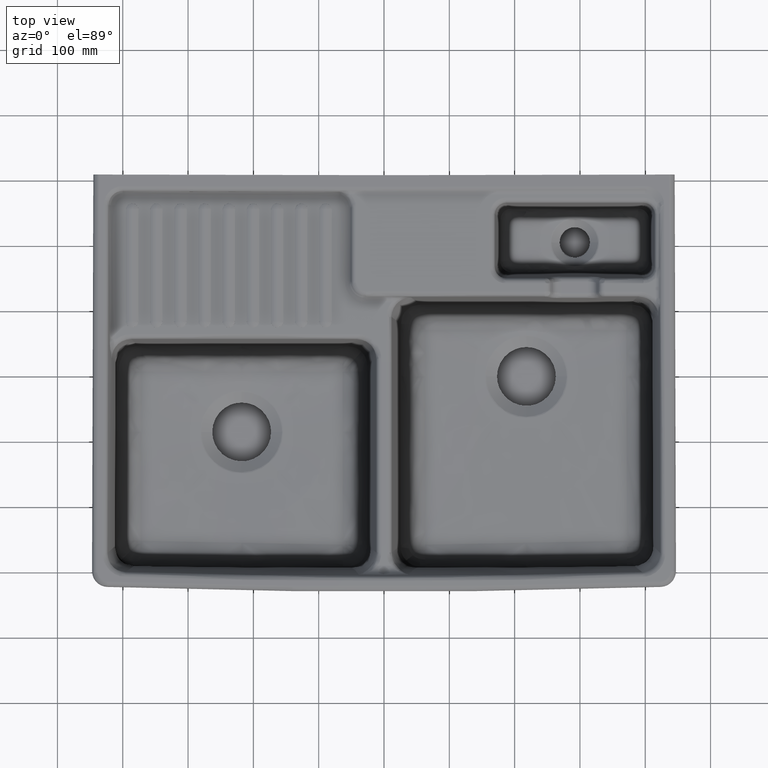
[diagram: clean part render]
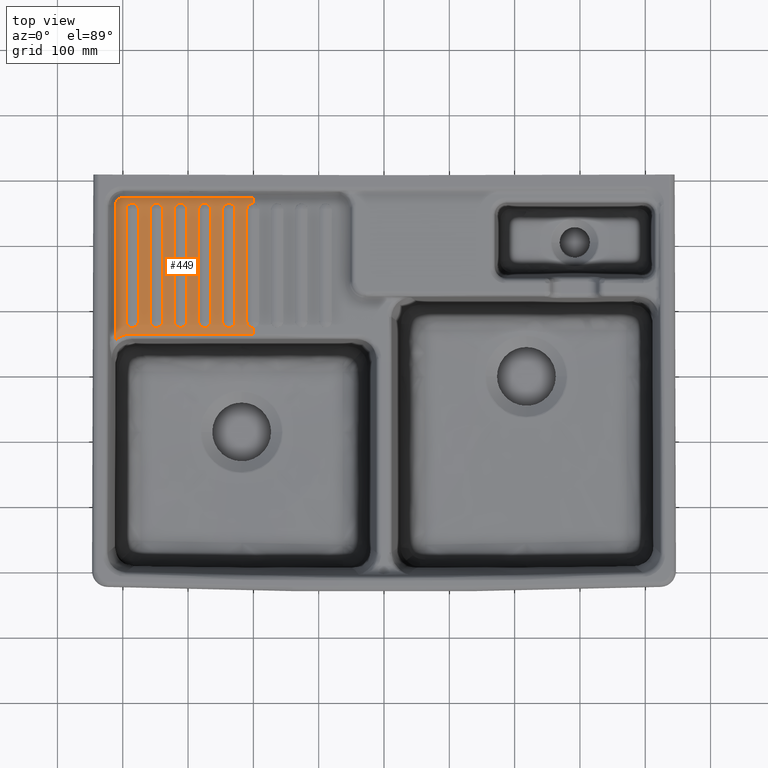
[diagram: same view with one face highlighted and labeled with its STEP entity id]
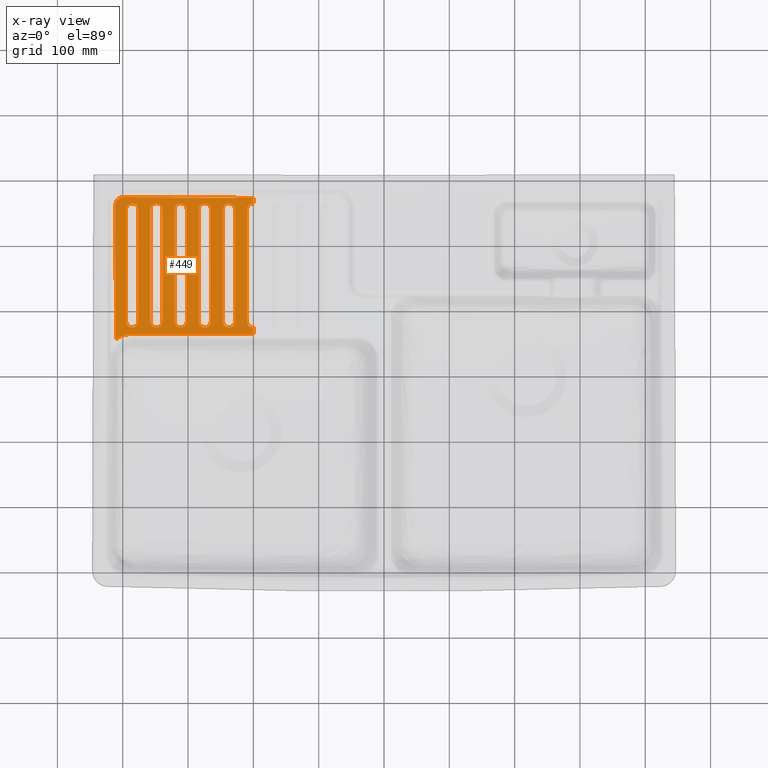
[diagram: x-ray of the same camera — body ghosted, the highlighted face saturated]
A machine part, top view. The second image highlights one B-rep face of the part: STEP entity #449.
The next image is the same camera in x-ray: the body ghosted, the highlighted face saturated — about 0% of this face is hidden behind the body in this view.
In plain terms, the highlighted planar face has unit normal (0.0029, -0.0325, 0.9995).
Its self-contained STEP definition (entity closure, byte-faithful):
#106=FACE_BOUND('',#1759,.T.);
#107=FACE_BOUND('',#1760,.T.);
#108=FACE_BOUND('',#1761,.T.);
#109=FACE_BOUND('',#1762,.T.);
#110=FACE_BOUND('',#1763,.T.);
#111=FACE_BOUND('',#1764,.T.);
#145=PLANE('',#7480);
#449=ADVANCED_FACE('',(#106,#107,#108,#109,#110,#111),#145,.T.);
#1759=EDGE_LOOP('',(#3286,#3287,#3288,#3289,#3290,#3291,#3292,#3293,#3294,
#3295,#3296,#3297));
#1760=EDGE_LOOP('',(#3298,#3299,#3300,#3301,#3302,#3303));
#1761=EDGE_LOOP('',(#3304,#3305,#3306,#3307,#3308,#3309));
#1762=EDGE_LOOP('',(#3310,#3311,#3312,#3313,#3314,#3315));
#1763=EDGE_LOOP('',(#3316,#3317,#3318,#3319,#3320,#3321));
#1764=EDGE_LOOP('',(#3322,#3323,#3324,#3325,#3326,#3327));
#3286=ORIENTED_EDGE('',*,*,#5849,.F.);
#3287=ORIENTED_EDGE('',*,*,#5844,.T.);
#3288=ORIENTED_EDGE('',*,*,#5618,.T.);
#3289=ORIENTED_EDGE('',*,*,#5850,.F.);
#3290=ORIENTED_EDGE('',*,*,#5614,.T.);
#3291=ORIENTED_EDGE('',*,*,#5543,.T.);
#3292=ORIENTED_EDGE('',*,*,#5545,.T.);
#3293=ORIENTED_EDGE('',*,*,#5548,.T.);
#3294=ORIENTED_EDGE('',*,*,#5610,.T.);
#3295=ORIENTED_EDGE('',*,*,#5851,.F.);
#3296=ORIENTED_EDGE('',*,*,#5852,.F.);
#3297=ORIENTED_EDGE('',*,*,#5853,.F.);
#3298=ORIENTED_EDGE('',*,*,#5550,.T.);
#3299=ORIENTED_EDGE('',*,*,#5553,.T.);
#3300=ORIENTED_EDGE('',*,*,#5554,.T.);
#3301=ORIENTED_EDGE('',*,*,#5557,.T.);
#3302=ORIENTED_EDGE('',*,*,#5559,.T.);
#3303=ORIENTED_EDGE('',*,*,#5560,.T.);
#3304=ORIENTED_EDGE('',*,*,#5562,.T.);
#3305=ORIENTED_EDGE('',*,*,#5565,.T.);
#3306=ORIENTED_EDGE('',*,*,#5566,.T.);
#3307=ORIENTED_EDGE('',*,*,#5569,.T.);
#3308=ORIENTED_EDGE('',*,*,#5571,.T.);
#3309=ORIENTED_EDGE('',*,*,#5572,.T.);
#3310=ORIENTED_EDGE('',*,*,#5574,.T.);
#3311=ORIENTED_EDGE('',*,*,#5577,.T.);
#3312=ORIENTED_EDGE('',*,*,#5578,.T.);
#3313=ORIENTED_EDGE('',*,*,#5581,.T.);
#3314=ORIENTED_EDGE('',*,*,#5583,.T.);
#3315=ORIENTED_EDGE('',*,*,#5584,.T.);
#3316=ORIENTED_EDGE('',*,*,#5586,.T.);
#3317=ORIENTED_EDGE('',*,*,#5589,.T.);
#3318=ORIENTED_EDGE('',*,*,#5590,.T.);
#3319=ORIENTED_EDGE('',*,*,#5593,.T.);
#3320=ORIENTED_EDGE('',*,*,#5595,.T.);
#3321=ORIENTED_EDGE('',*,*,#5596,.T.);
#3322=ORIENTED_EDGE('',*,*,#5598,.T.);
#3323=ORIENTED_EDGE('',*,*,#5601,.T.);
#3324=ORIENTED_EDGE('',*,*,#5602,.T.);
#3325=ORIENTED_EDGE('',*,*,#5605,.T.);
#3326=ORIENTED_EDGE('',*,*,#5607,.T.);
#3327=ORIENTED_EDGE('',*,*,#5608,.T.);
#4633=VERTEX_POINT('',#19052);
#4634=VERTEX_POINT('',#19072);
#4635=VERTEX_POINT('',#19135);
#4636=VERTEX_POINT('',#19141);
#4637=VERTEX_POINT('',#19203);
#4638=VERTEX_POINT('',#19225);
#4639=VERTEX_POINT('',#19290);
#4640=VERTEX_POINT('',#19334);
#4641=VERTEX_POINT('',#19340);
#4642=VERTEX_POINT('',#19382);
#4643=VERTEX_POINT('',#19447);
#4644=VERTEX_POINT('',#19469);
#4645=VERTEX_POINT('',#19534);
#4646=VERTEX_POINT('',#19578);
#4647=VERTEX_POINT('',#19584);
#4648=VERTEX_POINT('',#19630);
#4649=VERTEX_POINT('',#19713);
#4650=VERTEX_POINT('',#19735);
#4651=VERTEX_POINT('',#19782);
#4652=VERTEX_POINT('',#19849);
#4653=VERTEX_POINT('',#19855);
#4654=VERTEX_POINT('',#19901);
#4655=VERTEX_POINT('',#19984);
#4656=VERTEX_POINT('',#20006);
#4657=VERTEX_POINT('',#20053);
#4658=VERTEX_POINT('',#20120);
#4659=VERTEX_POINT('',#20126);
#4660=VERTEX_POINT('',#20172);
#4661=VERTEX_POINT('',#20255);
#4662=VERTEX_POINT('',#20277);
#4663=VERTEX_POINT('',#20306);
#4664=VERTEX_POINT('',#20386);
#4665=VERTEX_POINT('',#20392);
#4666=VERTEX_POINT('',#20456);
#4667=VERTEX_POINT('',#20529);
#4670=VERTEX_POINT('',#20589);
#4672=VERTEX_POINT('',#20631);
#4673=VERTEX_POINT('',#20636);
#4806=VERTEX_POINT('',#26821);
#4810=VERTEX_POINT('',#26924);
#4811=VERTEX_POINT('',#26933);
#4812=VERTEX_POINT('',#26938);
#5543=EDGE_CURVE('',#4634,#4633,#6738,.T.);
#5545=EDGE_CURVE('',#4633,#4635,#6740,.T.);
#5548=EDGE_CURVE('',#4635,#4636,#6743,.T.);
#5550=EDGE_CURVE('',#4638,#4637,#6745,.T.);
#5553=EDGE_CURVE('',#4637,#4639,#6748,.T.);
#5554=EDGE_CURVE('',#4639,#4640,#6749,.T.);
#5557=EDGE_CURVE('',#4640,#4641,#6752,.T.);
#5559=EDGE_CURVE('',#4641,#4642,#6754,.T.);
#5560=EDGE_CURVE('',#4642,#4638,#6755,.T.);
#5562=EDGE_CURVE('',#4644,#4643,#6757,.T.);
#5565=EDGE_CURVE('',#4643,#4645,#6760,.T.);
#5566=EDGE_CURVE('',#4645,#4646,#6761,.T.);
#5569=EDGE_CURVE('',#4646,#4647,#6764,.T.);
#5571=EDGE_CURVE('',#4647,#4648,#6766,.T.);
#5572=EDGE_CURVE('',#4648,#4644,#6767,.T.);
#5574=EDGE_CURVE('',#4650,#4649,#6769,.T.);
#5577=EDGE_CURVE('',#4649,#4651,#6772,.T.);
#5578=EDGE_CURVE('',#4651,#4652,#6773,.T.);
#5581=EDGE_CURVE('',#4652,#4653,#6776,.T.);
#5583=EDGE_CURVE('',#4653,#4654,#6778,.T.);
#5584=EDGE_CURVE('',#4654,#4650,#6779,.T.);
#5586=EDGE_CURVE('',#4656,#4655,#6781,.T.);
#5589=EDGE_CURVE('',#4655,#4657,#6784,.T.);
#5590=EDGE_CURVE('',#4657,#4658,#6785,.T.);
#5593=EDGE_CURVE('',#4658,#4659,#6788,.T.);
#5595=EDGE_CURVE('',#4659,#4660,#6790,.T.);
#5596=EDGE_CURVE('',#4660,#4656,#6791,.T.);
#5598=EDGE_CURVE('',#4662,#4661,#6793,.T.);
#5601=EDGE_CURVE('',#4661,#4663,#6796,.T.);
#5602=EDGE_CURVE('',#4663,#4664,#6797,.T.);
#5605=EDGE_CURVE('',#4664,#4665,#6800,.T.);
#5607=EDGE_CURVE('',#4665,#4666,#6802,.T.);
#5608=EDGE_CURVE('',#4666,#4662,#6803,.T.);
#5610=EDGE_CURVE('',#4636,#4667,#6805,.T.);
#5614=EDGE_CURVE('',#4670,#4634,#6809,.T.);
#5618=EDGE_CURVE('',#4673,#4672,#6813,.T.);
#5844=EDGE_CURVE('',#4806,#4673,#7039,.T.);
#5849=EDGE_CURVE('',#4806,#4810,#7044,.T.);
#5850=EDGE_CURVE('',#4670,#4672,#7045,.T.);
#5851=EDGE_CURVE('',#4811,#4667,#7046,.T.);
#5852=EDGE_CURVE('',#4812,#4811,#7047,.T.);
#5853=EDGE_CURVE('',#4810,#4812,#7048,.T.);
#6738=B_SPLINE_CURVE_WITH_KNOTS('',3,(#19053,#19054,#19055,#19056,#19057,
#19058,#19059,#19060,#19061,#19062,#19063,#19064,#19065,#19066,#19067,#19068,
#19069,#19070,#19071),.UNSPECIFIED.,.F.,.F.,(4,2,1,1,1,2,2,2,2,2,4),(0.,
0.00781250000000168,0.0156250000000034,0.0312500000000067,0.0625000000000074,
0.125000000000009,0.250000000000006,0.500000000000005,0.625000000000005,
0.750000000000005,1.),.UNSPECIFIED.);
#6740=B_SPLINE_CURVE_WITH_KNOTS('',3,(#19131,#19132,#19133,#19134),
 .UNSPECIFIED.,.F.,.F.,(4,4),(0.,1.),.UNSPECIFIED.);
#6743=B_SPLINE_CURVE_WITH_KNOTS('',3,(#19142,#19143,#19144,#19145,#19146,
#19147,#19148,#19149,#19150,#19151,#19152,#19153,#19154,#19155,#19156,#19157,
#19158,#19159,#19160,#19161,#19162),.UNSPECIFIED.,.F.,.F.,(4,2,2,2,2,2,
2,1,1,1,2,4),(0.,0.125000000000003,0.250000000000006,0.500000000000003,
0.625000000000002,0.750000000000001,0.875,0.937499999999997,0.968749999999998,
0.984374999999999,0.9921875,1.),.UNSPECIFIED.);
#6745=B_SPLINE_CURVE_WITH_KNOTS('',3,(#19204,#19205,#19206,#19207,#19208,
#19209,#19210,#19211,#19212,#19213,#19214,#19215,#19216,#19217,#19218,#19219,
#19220,#19221,#19222,#19223,#19224),.UNSPECIFIED.,.F.,.F.,(4,2,2,2,2,2,
2,1,1,1,2,4),(0.,0.124999999999998,0.249999999999996,0.499999999999992,
0.624999999999994,0.749999999999996,0.874999999999998,0.937499999999999,
0.96875,0.984375000000006,0.992187500000003,1.),.UNSPECIFIED.);
#6748=B_SPLINE_CURVE_WITH_KNOTS('',3,(#19291,#19292,#19293,#19294,#19295,
#19296,#19297,#19298,#19299,#19300,#19301,#19302,#19303,#19304,#19305,#19306,
#19307,#19308,#19309),.UNSPECIFIED.,.F.,.F.,(4,2,1,1,1,2,2,2,2,2,4),(0.,
0.00781249999999886,0.0156249999999977,0.0312499999999954,0.0624999999999909,
0.124999999999994,0.25,0.500000000000001,0.750000000000002,0.875000000000001,
1.),.UNSPECIFIED.);
#6749=B_SPLINE_CURVE_WITH_KNOTS('',3,(#19330,#19331,#19332,#19333),
 .UNSPECIFIED.,.F.,.F.,(4,4),(0.,1.),.UNSPECIFIED.);
#6752=B_SPLINE_CURVE_WITH_KNOTS('',3,(#19341,#19342,#19343,#19344,#19345,
#19346,#19347,#19348,#19349,#19350,#19351,#19352,#19353,#19354,#19355,#19356,
#19357),.UNSPECIFIED.,.F.,.F.,(4,2,1,1,1,2,2,2,2,4),(0.,0.0078125000000054,
0.0156250000000108,0.0312500000000114,0.0625000000000126,0.125000000000014,
0.250000000000014,0.375000000000015,0.500000000000015,1.),.UNSPECIFIED.);
#6754=B_SPLINE_CURVE_WITH_KNOTS('',3,(#19383,#19384,#19385,#19386,#19387,
#19388,#19389,#19390,#19391,#19392,#19393,#19394,#19395,#19396,#19397,#19398,
#19399,#19400,#19401),.UNSPECIFIED.,.F.,.F.,(4,2,1,1,1,2,2,2,2,2,4),(0.,
0.00781249999999791,0.0156249999999958,0.0312500000000034,0.0625000000000067,
0.125000000000012,0.250000000000014,0.500000000000011,0.750000000000008,
0.875000000000004,1.),.UNSPECIFIED.);
#6755=B_SPLINE_CURVE_WITH_KNOTS('',3,(#19440,#19441,#19442,#19443),
 .UNSPECIFIED.,.F.,.F.,(4,4),(0.,1.),.UNSPECIFIED.);
#6757=B_SPLINE_CURVE_WITH_KNOTS('',3,(#19448,#19449,#19450,#19451,#19452,
#19453,#19454,#19455,#19456,#19457,#19458,#19459,#19460,#19461,#19462,#19463,
#19464,#19465,#19466,#19467,#19468),.UNSPECIFIED.,.F.,.F.,(4,2,2,2,2,2,
2,1,1,1,2,4),(0.,0.125000000000001,0.250000000000002,0.500000000000001,
0.625000000000001,0.750000000000001,0.875000000000001,0.9375,0.96875,0.984375,
0.9921875,1.),.UNSPECIFIED.);
#6760=B_SPLINE_CURVE_WITH_KNOTS('',3,(#19535,#19536,#19537,#19538,#19539,
#19540,#19541,#19542,#19543,#19544,#19545,#19546,#19547,#19548,#19549,#19550,
#19551,#19552,#19553),.UNSPECIFIED.,.F.,.F.,(4,2,1,1,1,2,2,2,2,2,4),(0.,
0.00781250000000505,0.0156250000000101,0.0312500000000085,0.0625000000000053,
0.124999999999999,0.249999999999998,0.499999999999997,0.749999999999995,
0.874999999999997,1.),.UNSPECIFIED.);
#6761=B_SPLINE_CURVE_WITH_KNOTS('',3,(#19574,#19575,#19576,#19577),
 .UNSPECIFIED.,.F.,.F.,(4,4),(0.,1.),.UNSPECIFIED.);
#6764=B_SPLINE_CURVE_WITH_KNOTS('',3,(#19585,#19586,#19587,#19588,#19589,
#19590,#19591,#19592,#19593,#19594,#19595,#19596,#19597,#19598,#19599,#19600,
#19601,#19602,#19603,#19604,#19605),.UNSPECIFIED.,.F.,.F.,(4,2,2,2,2,2,
2,1,1,1,2,4),(0.,0.125000000000002,0.250000000000004,0.500000000000008,
0.625000000000006,0.750000000000004,0.875000000000002,0.937500000000001,
0.968750000000007,0.984375000000009,0.992187500000005,1.),.UNSPECIFIED.);
#6766=B_SPLINE_CURVE_WITH_KNOTS('',3,(#19631,#19632,#19633,#19634,#19635,
#19636,#19637,#19638,#19639,#19640,#19641,#19642,#19643,#19644,#19645,#19646,
#19647,#19648,#19649),.UNSPECIFIED.,.F.,.F.,(4,2,1,1,1,2,2,2,2,2,4),(0.,
0.0078124999999907,0.0156249999999814,0.0312499999999748,0.0624999999999738,
0.124999999999972,0.249999999999968,0.499999999999976,0.749999999999983,
0.874999999999991,1.),.UNSPECIFIED.);
#6767=B_SPLINE_CURVE_WITH_KNOTS('',3,(#19706,#19707,#19708,#19709),
 .UNSPECIFIED.,.F.,.F.,(4,4),(0.,1.),.UNSPECIFIED.);
#6769=B_SPLINE_CURVE_WITH_KNOTS('',3,(#19714,#19715,#19716,#19717,#19718,
#19719,#19720,#19721,#19722,#19723,#19724,#19725,#19726,#19727,#19728,#19729,
#19730,#19731,#19732,#19733,#19734),.UNSPECIFIED.,.F.,.F.,(4,2,2,2,2,2,
2,1,1,1,2,4),(0.,0.124999999999998,0.249999999999996,0.5,0.625000000000006,
0.750000000000011,0.875000000000017,0.93750000000002,0.968750000000022,
0.984375000000017,0.992187500000008,1.),.UNSPECIFIED.);
#6772=B_SPLINE_CURVE_WITH_KNOTS('',3,(#19783,#19784,#19785,#19786,#19787,
#19788,#19789,#19790,#19791,#19792,#19793,#19794,#19795,#19796,#19797,#19798,
#19799,#19800,#19801,#19802,#19803,#19804,#19805,#19806),.UNSPECIFIED.,
 .F.,.F.,(4,2,1,1,1,2,2,2,2,2,1,1,1,2,4),(0.,0.00781250000000093,0.0156250000000019,
0.0312500000000036,0.0625000000000071,0.125000000000014,0.250000000000017,
0.500000000000012,0.750000000000008,0.875000000000002,0.9375,0.968749999999998,
0.984374999999998,0.992187499999999,1.),.UNSPECIFIED.);
#6773=B_SPLINE_CURVE_WITH_KNOTS('',3,(#19845,#19846,#19847,#19848),
 .UNSPECIFIED.,.F.,.F.,(4,4),(0.,1.),.UNSPECIFIED.);
#6776=B_SPLINE_CURVE_WITH_KNOTS('',3,(#19856,#19857,#19858,#19859,#19860,
#19861,#19862,#19863,#19864,#19865,#19866,#19867,#19868,#19869,#19870,#19871,
#19872,#19873,#19874,#19875,#19876),.UNSPECIFIED.,.F.,.F.,(4,2,2,2,2,2,
2,1,1,1,2,4),(0.,0.125,0.25,0.499999999999995,0.624999999999997,0.749999999999998,
0.875,0.937499999999994,0.968749999999991,0.984374999999995,0.992187499999998,
1.),.UNSPECIFIED.);
#6778=B_SPLINE_CURVE_WITH_KNOTS('',3,(#19902,#19903,#19904,#19905,#19906,
#19907,#19908,#19909,#19910,#19911,#19912,#19913,#19914,#19915,#19916,#19917,
#19918,#19919,#19920),.UNSPECIFIED.,.F.,.F.,(4,2,1,1,1,2,2,2,2,2,4),(0.,
0.00781250000000232,0.0156250000000046,0.0312500000000093,0.0625000000000069,
0.125000000000013,0.250000000000015,0.500000000000008,0.750000000000002,
0.875000000000001,1.),.UNSPECIFIED.);
#6779=B_SPLINE_CURVE_WITH_KNOTS('',3,(#19977,#19978,#19979,#19980),
 .UNSPECIFIED.,.F.,.F.,(4,4),(0.,1.),.UNSPECIFIED.);
#6781=B_SPLINE_CURVE_WITH_KNOTS('',3,(#19985,#19986,#19987,#19988,#19989,
#19990,#19991,#19992,#19993,#19994,#19995,#19996,#19997,#19998,#19999,#20000,
#20001,#20002,#20003,#20004,#20005),.UNSPECIFIED.,.F.,.F.,(4,2,2,2,2,2,
2,1,1,1,2,4),(0.,0.125,0.25,0.500000000000002,0.625000000000005,0.750000000000007,
0.875000000000009,0.937500000000016,0.968750000000014,0.984375000000013,
0.992187500000006,1.),.UNSPECIFIED.);
#6784=B_SPLINE_CURVE_WITH_KNOTS('',3,(#20054,#20055,#20056,#20057,#20058,
#20059,#20060,#20061,#20062,#20063,#20064,#20065,#20066,#20067,#20068,#20069,
#20070,#20071,#20072,#20073,#20074,#20075,#20076,#20077),.UNSPECIFIED.,
 .F.,.F.,(4,2,1,1,1,2,2,2,2,2,1,1,1,2,4),(0.,0.00781250000000514,0.0156250000000103,
0.0312500000000088,0.0625000000000061,0.125000000000001,0.250000000000001,
0.500000000000001,0.750000000000001,0.874999999999999,0.937499999999998,
0.968749999999999,0.984374999999999,0.9921875,1.),.UNSPECIFIED.);
#6785=B_SPLINE_CURVE_WITH_KNOTS('',3,(#20116,#20117,#20118,#20119),
 .UNSPECIFIED.,.F.,.F.,(4,4),(0.,1.),.UNSPECIFIED.);
#6788=B_SPLINE_CURVE_WITH_KNOTS('',3,(#20127,#20128,#20129,#20130,#20131,
#20132,#20133,#20134,#20135,#20136,#20137,#20138,#20139,#20140,#20141,#20142,
#20143,#20144,#20145,#20146,#20147),.UNSPECIFIED.,.F.,.F.,(4,2,2,2,2,2,
2,1,1,1,2,4),(0.,0.124999999999999,0.249999999999997,0.49999999999999,0.62499999999999,
0.74999999999999,0.87499999999999,0.937499999999989,0.968749999999995,0.984374999999997,
0.992187499999999,1.),.UNSPECIFIED.);
#6790=B_SPLINE_CURVE_WITH_KNOTS('',3,(#20173,#20174,#20175,#20176,#20177,
#20178,#20179,#20180,#20181,#20182,#20183,#20184,#20185,#20186,#20187,#20188,
#20189,#20190,#20191),.UNSPECIFIED.,.F.,.F.,(4,2,1,1,1,2,2,2,2,2,4),(0.,
0.00781249999999748,0.015624999999995,0.0312499999999899,0.0624999999999916,
0.124999999999995,0.250000000000002,0.500000000000004,0.750000000000007,
0.875000000000004,1.),.UNSPECIFIED.);
#6791=B_SPLINE_CURVE_WITH_KNOTS('',3,(#20248,#20249,#20250,#20251),
 .UNSPECIFIED.,.F.,.F.,(4,4),(0.,1.),.UNSPECIFIED.);
#6793=B_SPLINE_CURVE_WITH_KNOTS('',3,(#20256,#20257,#20258,#20259,#20260,
#20261,#20262,#20263,#20264,#20265,#20266,#20267,#20268,#20269,#20270,#20271,
#20272,#20273,#20274,#20275,#20276),.UNSPECIFIED.,.F.,.F.,(4,2,2,2,2,2,
2,1,1,1,2,4),(0.,0.249999999999997,0.374999999999997,0.499999999999998,
0.624999999999998,0.749999999999999,0.874999999999999,0.9375,0.96875,0.984375,
0.9921875,1.),.UNSPECIFIED.);
#6796=B_SPLINE_CURVE_WITH_KNOTS('',3,(#20307,#20308,#20309,#20310,#20311,
#20312,#20313,#20314,#20315,#20316,#20317,#20318,#20319,#20320,#20321,#20322,
#20323,#20324,#20325),.UNSPECIFIED.,.F.,.F.,(4,2,1,1,1,2,2,2,2,2,4),(0.,
0.0078125000000012,0.0156250000000024,0.0312500000000048,0.0625000000000038,
0.125000000000008,0.250000000000009,0.500000000000008,0.625000000000006,
0.750000000000003,1.),.UNSPECIFIED.);
#6797=B_SPLINE_CURVE_WITH_KNOTS('',3,(#20382,#20383,#20384,#20385),
 .UNSPECIFIED.,.F.,.F.,(4,4),(0.,1.),.UNSPECIFIED.);
#6800=B_SPLINE_CURVE_WITH_KNOTS('',3,(#20393,#20394,#20395,#20396,#20397,
#20398,#20399,#20400,#20401,#20402,#20403,#20404,#20405,#20406,#20407,#20408,
#20409,#20410,#20411,#20412,#20413),.UNSPECIFIED.,.F.,.F.,(4,2,2,2,2,2,
2,1,1,1,2,4),(0.,0.124999999999998,0.249999999999996,0.499999999999989,
0.624999999999988,0.749999999999987,0.874999999999986,0.937499999999984,
0.968749999999987,0.98437499999999,0.992187499999995,1.),.UNSPECIFIED.);
#6802=B_SPLINE_CURVE_WITH_KNOTS('',3,(#20457,#20458,#20459,#20460,#20461,
#20462,#20463,#20464,#20465,#20466,#20467,#20468,#20469,#20470,#20471,#20472,
#20473,#20474,#20475),.UNSPECIFIED.,.F.,.F.,(4,2,1,1,1,2,2,2,2,2,4),(0.,
0.00781249999999578,0.0156249999999916,0.031249999999989,0.0624999999999903,
0.124999999999993,0.249999999999994,0.499999999999996,0.749999999999998,
0.874999999999999,1.),.UNSPECIFIED.);
#6803=B_SPLINE_CURVE_WITH_KNOTS('',3,(#20514,#20515,#20516,#20517),
 .UNSPECIFIED.,.F.,.F.,(4,4),(0.,1.),.UNSPECIFIED.);
#6805=B_SPLINE_CURVE_WITH_KNOTS('',3,(#20531,#20532,#20533,#20534),
 .UNSPECIFIED.,.F.,.F.,(4,4),(0.,1.),.UNSPECIFIED.);
#6809=B_SPLINE_CURVE_WITH_KNOTS('',3,(#20585,#20586,#20587,#20588),
 .UNSPECIFIED.,.F.,.F.,(4,4),(0.,1.),.UNSPECIFIED.);
#6813=B_SPLINE_CURVE_WITH_KNOTS('',3,(#20632,#20633,#20634,#20635),
 .UNSPECIFIED.,.F.,.F.,(4,4),(0.,1.),.UNSPECIFIED.);
#7039=B_SPLINE_CURVE_WITH_KNOTS('',3,(#26795,#26796,#26797,#26798,#26799,
#26800,#26801,#26802,#26803,#26804,#26805,#26806,#26807,#26808,#26809,#26810,
#26811,#26812,#26813,#26814,#26815,#26816,#26817,#26818,#26819,#26820),
 .UNSPECIFIED.,.F.,.F.,(4,2,1,1,1,1,1,1,1,1,2,2,1,1,1,1,1,1,2,4),(0.,0.00390624999999886,
0.00781249999999773,0.0156249999999955,0.0312499999999904,0.0624999999999864,
0.124999999999979,0.249999999999968,0.374999999999958,0.437499999999956,
0.468749999999958,0.49999999999996,0.749999999999977,0.874999999999989,
0.937499999999994,0.968749999999994,0.984374999999991,0.992187499999992,
0.996093749999996,1.),.UNSPECIFIED.);
#7044=B_SPLINE_CURVE_WITH_KNOTS('',3,(#26920,#26921,#26922,#26923),
 .UNSPECIFIED.,.F.,.F.,(4,4),(0.,1.),.UNSPECIFIED.);
#7045=B_SPLINE_CURVE_WITH_KNOTS('',3,(#26925,#26926,#26927,#26928),
 .UNSPECIFIED.,.F.,.F.,(4,4),(0.,1.),.UNSPECIFIED.);
#7046=B_SPLINE_CURVE_WITH_KNOTS('',3,(#26929,#26930,#26931,#26932),
 .UNSPECIFIED.,.F.,.F.,(4,4),(0.,1.),.UNSPECIFIED.);
#7047=B_SPLINE_CURVE_WITH_KNOTS('',3,(#26934,#26935,#26936,#26937),
 .UNSPECIFIED.,.F.,.F.,(4,4),(0.,1.),.UNSPECIFIED.);
#7048=B_SPLINE_CURVE_WITH_KNOTS('',3,(#26939,#26940,#26941,#26942),
 .UNSPECIFIED.,.F.,.F.,(4,4),(0.,1.),.UNSPECIFIED.);
#7480=AXIS2_PLACEMENT_3D('',#26943,#7539,#7540);
#7539=DIRECTION('',(0.00289700371178032,-0.0325407608754803,0.99946621066004));
#7540=DIRECTION('',(-0.999995799227731,0.,0.00289853875121432));
#19052=CARTESIAN_POINT('',(-210.001573696676,81.6325530150259,-20.8753900146048));
#19053=CARTESIAN_POINT('',(-200.499992723868,72.1396952849205,-21.2120006206169));
#19054=CARTESIAN_POINT('',(-200.574142418207,72.1396322055971,-21.211787747697));
#19055=CARTESIAN_POINT('',(-200.575076869157,72.1398378927382,-21.2117783423526));
#19056=CARTESIAN_POINT('',(-200.649096283142,72.1406229522154,-21.2115382332352));
#19057=CARTESIAN_POINT('',(-200.760026837638,72.1424422195856,-21.2111574634117));
#19058=CARTESIAN_POINT('',(-201.018174832756,72.1511789238632,-21.2101247574595));
#19059=CARTESIAN_POINT('',(-201.531710961502,72.1866193207413,-21.2074823734318));
#19060=CARTESIAN_POINT('',(-201.967153595015,72.2477973551902,-21.2042283777682));
#19061=CARTESIAN_POINT('',(-202.831730607207,72.4112208259686,-21.1964015930165));
#19062=CARTESIAN_POINT('',(-203.390481287726,72.5713250577751,-21.1895693297094));
#19063=CARTESIAN_POINT('',(-205.09685412034,73.237521269273,-21.1629332115892));
#19064=CARTESIAN_POINT('',(-206.067047001019,73.8351696961491,-21.1406627369242));
#19065=CARTESIAN_POINT('',(-207.454484935926,75.1333713122586,-21.0943741473632));
#19066=CARTESIAN_POINT('',(-207.866871656744,75.6031882622321,-21.0778824573897));
#19067=CARTESIAN_POINT('',(-208.591459916746,76.6169883180528,-21.0427747572028));
#19068=CARTESIAN_POINT('',(-208.887084915018,77.124222350314,-21.0254032764226));
#19069=CARTESIAN_POINT('',(-209.723145906009,78.9776781497762,-20.9626348375412));
#19070=CARTESIAN_POINT('',(-210.001953922195,80.2745229743334,-20.9196038428687));
#19071=CARTESIAN_POINT('',(-210.002195960573,81.6325754238064,-20.8753874794445));
#19072=CARTESIAN_POINT('',(-200.500485086194,72.1388833277795,-21.212025628775));
#19131=CARTESIAN_POINT('',(-210.002196050925,81.6331925006612,-20.875367388308));
#19132=CARTESIAN_POINT('',(-210.002182314861,138.603087289062,-19.0205336141947));
#19133=CARTESIAN_POINT('',(-210.002168578797,195.572982077463,-17.1656998400815));
#19134=CARTESIAN_POINT('',(-210.002154842733,252.542876865864,-15.3108660659683));
#19135=CARTESIAN_POINT('',(-210.001542117585,252.542250184156,-15.3108882475063));
#19141=CARTESIAN_POINT('',(-200.500462034826,262.036713225066,-15.0293055065965));
#19142=CARTESIAN_POINT('',(-210.002154785744,252.542876865861,-15.3108660661336));
#19143=CARTESIAN_POINT('',(-210.002047919059,253.227087480348,-15.2885897508727));
#19144=CARTESIAN_POINT('',(-209.932050636865,253.894618925761,-15.2670590592633));
#19145=CARTESIAN_POINT('',(-209.652275241457,255.196323478434,-15.2254889233478));
#19146=CARTESIAN_POINT('',(-209.423523275722,255.872387712927,-15.2041405785316));
#19147=CARTESIAN_POINT('',(-208.641454472581,257.599162528783,-15.1501868684733));
#19148=CARTESIAN_POINT('',(-207.917997782155,258.607812538186,-15.119444076253));
#19149=CARTESIAN_POINT('',(-206.529696514016,259.906987750536,-15.0811694096504));
#19150=CARTESIAN_POINT('',(-206.07992507739,260.250431957251,-15.0712911904789));
#19151=CARTESIAN_POINT('',(-205.070770598597,260.884989925919,-15.0535562489069));
#19152=CARTESIAN_POINT('',(-204.533987420572,261.154954610693,-15.0463225942663));
#19153=CARTESIAN_POINT('',(-203.396009187266,261.600255381121,-15.0351229172757));
#19154=CARTESIAN_POINT('',(-202.835606262555,261.761447303263,-15.0314991645146));
#19155=CARTESIAN_POINT('',(-201.969586993201,261.926033528603,-15.0286507440938));
#19156=CARTESIAN_POINT('',(-201.533414358642,261.987777570474,-15.0279047415249));
#19157=CARTESIAN_POINT('',(-201.019011035197,262.023851412094,-15.028221268567));
#19158=CARTESIAN_POINT('',(-200.760425561025,262.03289811443,-15.0286762479312));
#19159=CARTESIAN_POINT('',(-200.649306683713,262.034848797187,-15.0289348210536));
#19160=CARTESIAN_POINT('',(-200.575161536341,262.035721146716,-15.0291213324611));
#19161=CARTESIAN_POINT('',(-200.574220324375,262.035928080279,-15.02911732324));
#19162=CARTESIAN_POINT('',(-200.499944536321,262.035951696131,-15.0293318465062));
#19203=CARTESIAN_POINT('',(-385.500219387925,72.1202906580468,-20.6763998273955));
#19204=CARTESIAN_POINT('',(-376.000909892686,81.6162149784155,-20.3947644189075));
#19205=CARTESIAN_POINT('',(-376.00102453604,80.9325677418009,-20.4170223690916));
#19206=CARTESIAN_POINT('',(-376.070993087209,80.2653690443733,-20.4385423103238));
#19207=CARTESIAN_POINT('',(-376.35063800518,78.9638687278916,-20.4801061748843));
#19208=CARTESIAN_POINT('',(-376.579130245814,78.287978824686,-20.5014495966245));
#19209=CARTESIAN_POINT('',(-377.361266934279,76.5591988353523,-20.5554683946326));
#19210=CARTESIAN_POINT('',(-378.084252160821,75.5499826510523,-20.5862309870166));
#19211=CARTESIAN_POINT('',(-379.471071151983,74.2511140874858,-20.6244999661605));
#19212=CARTESIAN_POINT('',(-379.920802902997,73.9074900931505,-20.6343841539133));
#19213=CARTESIAN_POINT('',(-380.930078234276,73.2725648626583,-20.6521307025501));
#19214=CARTESIAN_POINT('',(-381.467142309922,73.0023178652096,-20.6593727345703));
#19215=CARTESIAN_POINT('',(-382.606123281227,72.5562551059066,-20.6705943140142));
#19216=CARTESIAN_POINT('',(-383.166505833144,72.3948589692229,-20.6742247746725));
#19217=CARTESIAN_POINT('',(-384.032197370606,72.2300277546915,-20.6770821214333));
#19218=CARTESIAN_POINT('',(-384.468091886504,72.1681933442783,-20.677831872375));
#19219=CARTESIAN_POINT('',(-384.981970795928,72.1320702932882,-20.6775184675392));
#19220=CARTESIAN_POINT('',(-385.240244077525,72.1230130414162,-20.6770647365544));
#19221=CARTESIAN_POINT('',(-385.351218446828,72.1210608492474,-20.6768066314394));
#19222=CARTESIAN_POINT('',(-385.425264875262,72.1201881627359,-20.6766204171452));
#19223=CARTESIAN_POINT('',(-385.426088669568,72.1199800739046,-20.6766248043208));
#19224=CARTESIAN_POINT('',(-385.500261153405,72.1199583503921,-20.6764105188762));
#19225=CARTESIAN_POINT('',(-376.000573743701,81.6163544225277,-20.3947608609868));
#19290=CARTESIAN_POINT('',(-394.999895286444,81.6138976437279,-20.3397703341836));
#19291=CARTESIAN_POINT('',(-385.500261153405,72.1199583503921,-20.6764105188762));
#19292=CARTESIAN_POINT('',(-385.574494744539,72.1199795535892,-20.6761946586951));
#19293=CARTESIAN_POINT('',(-385.575308354691,72.1201866046474,-20.6761855592073));
#19294=CARTESIAN_POINT('',(-385.649407139795,72.1210543524985,-20.6759425278489));
#19295=CARTESIAN_POINT('',(-385.76045343839,72.1229957466449,-20.6755574463146));
#19296=CARTESIAN_POINT('',(-386.018848315029,72.1320040729088,-20.6745151812571));
#19297=CARTESIAN_POINT('',(-386.532785454633,72.1679343517928,-20.671855685232));
#19298=CARTESIAN_POINT('',(-386.968412807996,72.2294408074466,-20.6685904613649));
#19299=CARTESIAN_POINT('',(-387.8331472549,72.3933991504251,-20.6607458058367));
#19300=CARTESIAN_POINT('',(-388.391740847156,72.5537016376348,-20.6539075430307));
#19301=CARTESIAN_POINT('',(-390.096679796684,73.2199825201619,-20.6272728243624));
#19302=CARTESIAN_POINT('',(-391.066216232909,73.8174471956213,-20.6050102350395));
#19303=CARTESIAN_POINT('',(-392.916464641557,75.5484873399175,-20.543287748325));
#19304=CARTESIAN_POINT('',(-393.640740144434,76.5615072594276,-20.5082063544679));
#19305=CARTESIAN_POINT('',(-394.425880346576,78.3022869097354,-20.4492540379323));
#19306=CARTESIAN_POINT('',(-394.651372098061,78.9721253000392,-20.4267917464755));
#19307=CARTESIAN_POINT('',(-394.929864482231,80.2691409615679,-20.3837561045444));
#19308=CARTESIAN_POINT('',(-394.99953933587,80.9332869997721,-20.3619307886982));
#19309=CARTESIAN_POINT('',(-394.999642851063,81.6130712454162,-20.3397979779715));
#19330=CARTESIAN_POINT('',(-394.999642902244,81.6130712454036,-20.3397979778235));
#19331=CARTESIAN_POINT('',(-394.999631406976,138.583228848505,-18.4849556404575));
#19332=CARTESIAN_POINT('',(-394.999619911708,195.553386451606,-16.6301133030914));
#19333=CARTESIAN_POINT('',(-394.99960841644,252.523544054707,-14.7752709657253));
#19334=CARTESIAN_POINT('',(-394.999878979638,252.523864562286,-14.7752597401294));
#19340=CARTESIAN_POINT('',(-385.500205842077,262.019760090348,-14.4936263362449));
#19341=CARTESIAN_POINT('',(-394.99960841644,252.523544054707,-14.7752709657253));
#19342=CARTESIAN_POINT('',(-394.999577592395,252.609069585426,-14.7724865028622));
#19343=CARTESIAN_POINT('',(-394.999311244591,252.609809902293,-14.7724631715446));
#19344=CARTESIAN_POINT('',(-394.998195803066,252.695077013407,-14.7696902661622));
#19345=CARTESIAN_POINT('',(-394.995704049311,252.822782643497,-14.7655396308459));
#19346=CARTESIAN_POINT('',(-394.984159816947,253.119397190981,-14.7559158744095));
#19347=CARTESIAN_POINT('',(-394.938150791146,253.70716526171,-14.7369125987422));
#19348=CARTESIAN_POINT('',(-394.859422092902,254.201604709352,-14.7210427690943));
#19349=CARTESIAN_POINT('',(-394.64957484253,255.178001263515,-14.6898613662684));
#19350=CARTESIAN_POINT('',(-394.420888012506,255.854116178967,-14.6685111825752));
#19351=CARTESIAN_POINT('',(-393.899557052409,257.005736568786,-14.6325276689613));
#19352=CARTESIAN_POINT('',(-393.588421873046,257.545859703326,-14.6158441054581));
#19353=CARTESIAN_POINT('',(-392.865212115694,258.554731851666,-14.585093365059));
#19354=CARTESIAN_POINT('',(-392.430635588917,259.044548432012,-14.5704054904253));
#19355=CARTESIAN_POINT('',(-390.230438046955,261.1045071645,-14.5097144501135));
#19356=CARTESIAN_POINT('',(-387.876195571228,262.019236294645,-14.4867564626853));
#19357=CARTESIAN_POINT('',(-385.500232033033,262.019504001457,-14.4936345979664));
#19382=CARTESIAN_POINT('',(-376.00055709125,252.526239332381,-14.8302529376517));
#19383=CARTESIAN_POINT('',(-385.500232033036,262.019504150137,-14.4936345931256));
#19384=CARTESIAN_POINT('',(-385.425975591768,262.019482670787,-14.49385052853));
#19385=CARTESIAN_POINT('',(-385.425154587067,262.01927587371,-14.4938596411822));
#19386=CARTESIAN_POINT('',(-385.351034307658,262.018408737232,-14.4941027149377));
#19387=CARTESIAN_POINT('',(-385.239956799209,262.016468887765,-14.4944878366435));
#19388=CARTESIAN_POINT('',(-384.981496320817,262.007468559097,-14.4955300314642));
#19389=CARTESIAN_POINT('',(-384.467456862649,261.97157184878,-14.4981887311347));
#19390=CARTESIAN_POINT('',(-384.031791324706,261.910124291968,-14.501452148045));
#19391=CARTESIAN_POINT('',(-383.167046531374,261.746323914384,-14.5092916905034));
#19392=CARTESIAN_POINT('',(-382.608780543531,261.586274122226,-14.5161207764504));
#19393=CARTESIAN_POINT('',(-380.903610197999,260.920349242309,-14.542744575049));
#19394=CARTESIAN_POINT('',(-379.934281526123,260.32319528609,-14.5649964457158));
#19395=CARTESIAN_POINT('',(-378.084131839313,258.591906223854,-14.6267267505852));
#19396=CARTESIAN_POINT('',(-377.359861417299,257.578688351935,-14.6618145746774));
#19397=CARTESIAN_POINT('',(-376.574662416362,255.837501532857,-14.7207803183021));
#19398=CARTESIAN_POINT('',(-376.349177599051,255.167605230345,-14.7432444751737));
#19399=CARTESIAN_POINT('',(-376.070669536643,253.870474870391,-14.7862838969164));
#19400=CARTESIAN_POINT('',(-376.000986584823,253.206299447856,-14.8081101929347));
#19401=CARTESIAN_POINT('',(-376.000874712386,252.526513782762,-14.8302430741));
#19440=CARTESIAN_POINT('',(-376.00087464177,252.52651378278,-14.8302430743041));
#19441=CARTESIAN_POINT('',(-376.000886367156,195.556414181323,-16.6850835225775));
#19442=CARTESIAN_POINT('',(-376.000898092542,138.586314579867,-18.5399239708509));
#19443=CARTESIAN_POINT('',(-376.000909817928,81.61621497841,-20.3947644191243));
#19447=CARTESIAN_POINT('',(-348.500528401904,72.1236852603292,-20.7835347785599));
#19448=CARTESIAN_POINT('',(-339.001420519188,81.6195231199013,-20.5019016162093));
#19449=CARTESIAN_POINT('',(-339.001533443223,80.9353465497103,-20.5241768054937));
#19450=CARTESIAN_POINT('',(-339.071503948608,80.2678312823935,-20.5457070479883));
#19451=CARTESIAN_POINT('',(-339.351160122078,78.9661233535082,-20.5872776393978));
#19452=CARTESIAN_POINT('',(-339.579832043937,78.2899906430504,-20.6086284456753));
#19453=CARTESIAN_POINT('',(-340.361489287085,76.5632470747263,-20.6625823312997));
#19454=CARTESIAN_POINT('',(-341.084603367339,75.5544108779131,-20.6933321785088));
#19455=CARTESIAN_POINT('',(-342.472288364951,74.2546458557977,-20.7316278345119));
#19456=CARTESIAN_POINT('',(-342.922018406613,73.9108743894843,-20.7415168286327));
#19457=CARTESIAN_POINT('',(-343.930877393039,73.2757922250218,-20.7592696935444));
#19458=CARTESIAN_POINT('',(-344.4674977884,73.0055642179895,-20.7665123933019));
#19459=CARTESIAN_POINT('',(-345.60512038342,72.5597343543232,-20.7777303274198));
#19460=CARTESIAN_POINT('',(-346.165756673515,72.3981859838922,-20.7813650090528));
#19461=CARTESIAN_POINT('',(-347.031639685738,72.2333362870986,-20.7842224025624));
#19462=CARTESIAN_POINT('',(-347.467714826958,72.1714941088067,-20.7849718828601));
#19463=CARTESIAN_POINT('',(-347.981953019821,72.1353645734833,-20.7846576477407));
#19464=CARTESIAN_POINT('',(-348.240443081612,72.1263047239925,-20.7842033729811));
#19465=CARTESIAN_POINT('',(-348.351518314956,72.124351556676,-20.7839450072555));
#19466=CARTESIAN_POINT('',(-348.425633754584,72.1234782507588,-20.7837586130956));
#19467=CARTESIAN_POINT('',(-348.426474235906,72.1232702611226,-20.7837629486734));
#19468=CARTESIAN_POINT('',(-348.500719221198,72.1232478505973,-20.7835484754475));
#19469=CARTESIAN_POINT('',(-339.000909039425,81.6197583550072,-20.5018954619435));
#19534=CARTESIAN_POINT('',(-358.000230606333,81.6172991753533,-20.4469050061548));
#19535=CARTESIAN_POINT('',(-348.500719221198,72.1232478505973,-20.7835484754475));
#19536=CARTESIAN_POINT('',(-348.574891722913,72.1232683937747,-20.7833328138262));
#19537=CARTESIAN_POINT('',(-348.57568831586,72.1234755618604,-20.7833237598534));
#19538=CARTESIAN_POINT('',(-348.649728151174,72.1243427854578,-20.7830809164328));
#19539=CARTESIAN_POINT('',(-348.760687657377,72.1262833983187,-20.7826961119078));
#19540=CARTESIAN_POINT('',(-349.018891444489,72.1352899372463,-20.7816544589253));
#19541=CARTESIAN_POINT('',(-349.532492109258,72.1712167841111,-20.7789960499299));
#19542=CARTESIAN_POINT('',(-349.967909405713,72.2327205425829,-20.7757315227387));
#19543=CARTESIAN_POINT('',(-350.832328205584,72.3966738172625,-20.7678879471438));
#19544=CARTESIAN_POINT('',(-351.390672053476,72.5569041070988,-20.7610527588468));
#19545=CARTESIAN_POINT('',(-353.096349503773,73.2233845378913,-20.7344094026761));
#19546=CARTESIAN_POINT('',(-354.066062245299,73.8207544954199,-20.7121493861629));
#19547=CARTESIAN_POINT('',(-355.916708523208,75.5517235278582,-20.650428061474));
#19548=CARTESIAN_POINT('',(-356.64112151859,76.5647485597692,-20.6153461026376));
#19549=CARTESIAN_POINT('',(-357.426375796302,78.3055968811737,-20.5563912196449));
#19550=CARTESIAN_POINT('',(-357.651862979916,78.9753808923189,-20.5339307119126));
#19551=CARTESIAN_POINT('',(-357.930373116527,80.2724053335286,-20.490894732675));
#19552=CARTESIAN_POINT('',(-358.000051595346,80.9365691488422,-20.4690688275315));
#19553=CARTESIAN_POINT('',(-358.000153484678,81.6163845588647,-20.4469350068632));
#19574=CARTESIAN_POINT('',(-358.000153532256,81.6163845588531,-20.4469350067256));
#19575=CARTESIAN_POINT('',(-358.000141588621,138.587469990943,-18.592062462273));
#19576=CARTESIAN_POINT('',(-358.000129644987,195.558555423033,-16.7371899178203));
#19577=CARTESIAN_POINT('',(-358.000117701353,252.529640855124,-14.8823173733677));
#19578=CARTESIAN_POINT('',(-358.00021360311,252.528657834909,-14.8823491028178));
#19584=CARTESIAN_POINT('',(-348.50051400837,262.023144720441,-14.6007616301041));
#19585=CARTESIAN_POINT('',(-358.000117656228,252.529640855121,-14.8823173734985));
#19586=CARTESIAN_POINT('',(-358.00001613086,253.213859060524,-14.8600407956094));
#19587=CARTESIAN_POINT('',(-357.930047851452,253.881368054611,-14.8385107509074));
#19588=CARTESIAN_POINT('',(-357.650377784557,255.182967620151,-14.7969437278776));
#19589=CARTESIAN_POINT('',(-357.421706554716,255.858948664887,-14.7755978575481));
#19590=CARTESIAN_POINT('',(-356.639912297447,257.585414611557,-14.7216534079108));
#19591=CARTESIAN_POINT('',(-355.916661677916,258.593866496898,-14.6909164689345));
#19592=CARTESIAN_POINT('',(-354.528704076591,259.892756206247,-14.6526501016428));
#19593=CARTESIAN_POINT('',(-354.078939056282,260.236225461211,-14.6427710483489));
#19594=CARTESIAN_POINT('',(-353.069764259461,260.870907904464,-14.6250321130088));
#19595=CARTESIAN_POINT('',(-352.532921463182,261.141001902149,-14.6177944209868));
#19596=CARTESIAN_POINT('',(-351.394725074888,261.586695449636,-14.6065825882391));
#19597=CARTESIAN_POINT('',(-350.834336020443,261.748062754083,-14.6029530851527));
#19598=CARTESIAN_POINT('',(-349.968761501546,261.912798229379,-14.600098516299));
#19599=CARTESIAN_POINT('',(-349.532896832538,261.974595470587,-14.5993498890048));
#19600=CARTESIAN_POINT('',(-349.019002585298,262.010693883225,-14.599664140477));
#19601=CARTESIAN_POINT('',(-348.760709094996,262.019743497351,-14.6001181787086));
#19602=CARTESIAN_POINT('',(-348.64972337772,262.021693419364,-14.6003763906283));
#19603=CARTESIAN_POINT('',(-348.575668786837,262.022564815364,-14.6005626705984));
#19604=CARTESIAN_POINT('',(-348.574870249552,262.0227729679,-14.6005582081399));
#19605=CARTESIAN_POINT('',(-348.500688389308,262.022793650396,-14.6007725546561));
#19630=CARTESIAN_POINT('',(-339.000891721125,252.529636016439,-14.9373877761589));
#19631=CARTESIAN_POINT('',(-348.500688389308,262.022793650396,-14.6007725546561));
#19632=CARTESIAN_POINT('',(-348.426432232656,262.022771448021,-14.6009885127759));
#19633=CARTESIAN_POINT('',(-348.425593990202,262.022564770915,-14.6009976714865));
#19634=CARTESIAN_POINT('',(-348.351473987958,262.021697056261,-14.601240763263));
#19635=CARTESIAN_POINT('',(-348.240396905662,262.019756349411,-14.6016259116483));
#19636=CARTESIAN_POINT('',(-347.981937494473,262.010754089343,-14.6026681662585));
#19637=CARTESIAN_POINT('',(-347.467900462092,261.974853792869,-14.6053269756563));
#19638=CARTESIAN_POINT('',(-347.032237502907,261.913403636455,-14.6085904697302));
#19639=CARTESIAN_POINT('',(-346.167498533106,261.749598691999,-14.6164301439977));
#19640=CARTESIAN_POINT('',(-345.60924066705,261.589547966258,-14.623259236799));
#19641=CARTESIAN_POINT('',(-343.904080568111,260.923616506255,-14.6498832199326));
#19642=CARTESIAN_POINT('',(-342.934761597356,260.326463375731,-14.6721350355972));
#19643=CARTESIAN_POINT('',(-341.084626516809,258.595176215108,-14.7338652362165));
#19644=CARTESIAN_POINT('',(-340.360361939549,257.581961948795,-14.7689529259756));
#19645=CARTESIAN_POINT('',(-339.575169518178,255.840784520325,-14.8279183447884));
#19646=CARTESIAN_POINT('',(-339.349686681478,255.170892746759,-14.850382348465));
#19647=CARTESIAN_POINT('',(-339.0711800795,253.873770307405,-14.8934215080946));
#19648=CARTESIAN_POINT('',(-339.001496952761,253.209598930826,-14.9152476728911));
#19649=CARTESIAN_POINT('',(-339.001384000273,252.529817397347,-14.9373804226693));
#19706=CARTESIAN_POINT('',(-339.001383927232,252.529817397366,-14.9373804228804));
#19707=CARTESIAN_POINT('',(-339.001396100789,195.559719304876,-16.7922208207256));
#19708=CARTESIAN_POINT('',(-339.001408274346,138.589621212386,-18.6470612185708));
#19709=CARTESIAN_POINT('',(-339.001420447903,81.6195231198962,-20.5019016164161));
#19713=CARTESIAN_POINT('',(-311.500848411137,72.1270698982055,-20.8906700470288));
#19714=CARTESIAN_POINT('',(-302.001931146596,81.6228278101108,-20.6090389258756));
#19715=CARTESIAN_POINT('',(-302.002043008979,80.9386534342258,-20.6313140467947));
#19716=CARTESIAN_POINT('',(-302.072012051371,80.2711400628603,-20.6528442318012));
#19717=CARTESIAN_POINT('',(-302.351664496172,78.9694353291684,-20.694414729989));
#19718=CARTESIAN_POINT('',(-302.580333523715,78.2933053232068,-20.7157654566024));
#19719=CARTESIAN_POINT('',(-303.361982213545,76.566565928187,-20.769719231144));
#19720=CARTESIAN_POINT('',(-304.085090800671,75.5577297802229,-20.8004690926848));
#19721=CARTESIAN_POINT('',(-305.472767872223,74.2579607313506,-20.8387649027657));
#19722=CARTESIAN_POINT('',(-305.922491810374,73.9141910369112,-20.8486538568888));
#19723=CARTESIAN_POINT('',(-306.931344788639,73.2791057046376,-20.8664068423536));
#19724=CARTESIAN_POINT('',(-307.467962462437,73.0088755045647,-20.873649621401));
#19725=CARTESIAN_POINT('',(-308.605580179363,72.5630400365468,-20.8848677521256));
#19726=CARTESIAN_POINT('',(-309.16620928549,72.4014903979493,-20.8885024958708));
#19727=CARTESIAN_POINT('',(-310.032088010922,72.2366358574791,-20.891360059507));
#19728=CARTESIAN_POINT('',(-310.468161367893,72.1747910095164,-20.8921096318959));
#19729=CARTESIAN_POINT('',(-310.982398107641,72.1386579258701,-20.8917955165153));
#19730=CARTESIAN_POINT('',(-311.240887600002,72.1295961937911,-20.8913413046998));
#19731=CARTESIAN_POINT('',(-311.351962622975,72.1276421964167,-20.8910829666091));
#19732=CARTESIAN_POINT('',(-311.426077929837,72.1267683319645,-20.8908965910189));
#19733=CARTESIAN_POINT('',(-311.426934463266,72.1265604537527,-20.8909008764411));
#19734=CARTESIAN_POINT('',(-311.501179311834,72.1265373509369,-20.8906864261511));
#19735=CARTESIAN_POINT('',(-302.001239335532,81.6231505886358,-20.6090304517785));
#19782=CARTESIAN_POINT('',(-321.000560909911,81.622173291926,-20.553991738248));
#19783=CARTESIAN_POINT('',(-311.501179311834,72.1265373509369,-20.8906864261511));
#19784=CARTESIAN_POINT('',(-311.575349722114,72.1265572505011,-20.8904707915468));
#19785=CARTESIAN_POINT('',(-311.576130229256,72.1267644989296,-20.8904617815838));
#19786=CARTESIAN_POINT('',(-311.65016783263,72.1276310806784,-20.8902189655299));
#19787=CARTESIAN_POINT('',(-311.761123899306,72.1295706393343,-20.8898342052975));
#19788=CARTESIAN_POINT('',(-312.019319019522,72.1385740784248,-20.8887926783614));
#19789=CARTESIAN_POINT('',(-312.532899785182,72.1744921655143,-20.8861346122466));
#19790=CARTESIAN_POINT('',(-312.968295627565,72.2359840268621,-20.8828705345893));
#19791=CARTESIAN_POINT('',(-313.832665655704,72.3999076556339,-20.8750280655774));
#19792=CARTESIAN_POINT('',(-314.390935729328,72.5600977326805,-20.8681944003725));
#19793=CARTESIAN_POINT('',(-316.096564410933,73.2265081840344,-20.8415534639607));
#19794=CARTESIAN_POINT('',(-317.066150581677,73.8237525033401,-20.8192979048662));
#19795=CARTESIAN_POINT('',(-318.916924107981,75.5548389849736,-20.757572387414));
#19796=CARTESIAN_POINT('',(-319.64135911655,76.5679724341233,-20.7224868349076));
#19797=CARTESIAN_POINT('',(-320.426583997529,78.3090579203473,-20.6635243154775));
#19798=CARTESIAN_POINT('',(-320.652141573798,78.9791810442635,-20.6410525628273));
#19799=CARTESIAN_POINT('',(-320.86109843299,79.9524932315173,-20.6087576562111));
#19800=CARTESIAN_POINT('',(-320.939489867426,80.4450557676865,-20.5924935146035));
#19801=CARTESIAN_POINT('',(-320.985294299403,81.0300483343331,-20.5733144782036));
#19802=CARTESIAN_POINT('',(-320.996783455009,81.3251286862686,-20.5636739088727));
#19803=CARTESIAN_POINT('',(-320.999261723044,81.4521454232293,-20.5595312967742));
#19804=CARTESIAN_POINT('',(-321.000370422668,81.5369462987561,-20.556767124369));
#19805=CARTESIAN_POINT('',(-321.000636359269,81.5375974536131,-20.5567451531471));
#19806=CARTESIAN_POINT('',(-321.000664161575,81.6226430586621,-20.5539761458398));
#19845=CARTESIAN_POINT('',(-321.000664161575,81.6226430586621,-20.5539761458398));
#19846=CARTESIAN_POINT('',(-321.000651769975,138.592744995181,-18.6991356234721));
#19847=CARTESIAN_POINT('',(-321.000639378376,195.5628469317,-16.8442951011044));
#19848=CARTESIAN_POINT('',(-321.000626986776,252.532948868219,-14.9894545787368));
#19849=CARTESIAN_POINT('',(-321.000543234077,252.532051560883,-14.9894840370318));
#19855=CARTESIAN_POINT('',(-311.500833432812,262.026544328555,-14.7078963762616));
#19856=CARTESIAN_POINT('',(-321.000626938891,252.532948868217,-14.9894545788757));
#19857=CARTESIAN_POINT('',(-321.000524147522,253.217169183801,-14.9671779359525));
#19858=CARTESIAN_POINT('',(-320.930554109191,253.88468017106,-14.9456478314549));
#19859=CARTESIAN_POINT('',(-320.650879538606,255.186283488925,-14.9040806993106));
#19860=CARTESIAN_POINT('',(-320.422205789788,255.862265027841,-14.8827348201928));
#19861=CARTESIAN_POINT('',(-319.640403886757,257.588733634817,-14.8287903061026));
#19862=CARTESIAN_POINT('',(-318.917146746617,258.597186285588,-14.7980533611056));
#19863=CARTESIAN_POINT('',(-317.529177229229,259.896075630928,-14.7597870402047));
#19864=CARTESIAN_POINT('',(-317.079411424927,260.239541741388,-14.7499080915624));
#19865=CARTESIAN_POINT('',(-316.070229622716,260.87422138529,-14.7321692676694));
#19866=CARTESIAN_POINT('',(-315.533383096185,261.144313650069,-14.72493164288));
#19867=CARTESIAN_POINT('',(-314.395178792271,261.590003065282,-14.7137199676153));
#19868=CARTESIAN_POINT('',(-313.834789453369,261.751366674137,-14.710090585675));
#19869=CARTESIAN_POINT('',(-312.969211049166,261.916097182214,-14.7072361898065));
#19870=CARTESIAN_POINT('',(-312.533344416033,261.977891794642,-14.7064876537936));
#19871=CARTESIAN_POINT('',(-312.01944783974,262.01398688632,-14.7068020201409));
#19872=CARTESIAN_POINT('',(-311.761153175517,262.023034776455,-14.7072561179051));
#19873=CARTESIAN_POINT('',(-311.650166953119,262.024983946004,-14.7075143557878));
#19874=CARTESIAN_POINT('',(-311.576112025041,262.025854837337,-14.7077006531662));
#19875=CARTESIAN_POINT('',(-311.575329487591,262.026063101702,-14.7076961406905));
#19876=CARTESIAN_POINT('',(-311.501147270846,262.026083150394,-14.7079105088755));
#19901=CARTESIAN_POINT('',(-302.001221352093,252.53303827425,-15.0445224415281));
#19902=CARTESIAN_POINT('',(-311.501147270846,262.026083150394,-14.7079105088755));
#19903=CARTESIAN_POINT('',(-311.426891392494,262.026060266443,-14.7081264883795));
#19904=CARTESIAN_POINT('',(-311.426037152257,262.025853700295,-14.7081356898479));
#19905=CARTESIAN_POINT('',(-311.351917421323,262.024985438817,-14.7083787986415));
#19906=CARTESIAN_POINT('',(-311.240840755597,262.02304392115,-14.7087639722181));
#19907=CARTESIAN_POINT('',(-310.982382383633,262.014039835113,-14.7098062832662));
#19908=CARTESIAN_POINT('',(-310.468347698624,261.97813615045,-14.7124651961732));
#19909=CARTESIAN_POINT('',(-310.032687212478,261.916683542013,-14.7157287629121));
#19910=CARTESIAN_POINT('',(-309.167953803431,261.752874296366,-14.7235685611003));
#19911=CARTESIAN_POINT('',(-308.609703384782,261.592822615781,-14.7303976634029));
#19912=CARTESIAN_POINT('',(-306.904553468289,260.926885184435,-14.7570218114379));
#19913=CARTESIAN_POINT('',(-305.935242925643,260.329732204075,-14.7792735977842));
#19914=CARTESIAN_POINT('',(-304.085122557897,258.598447922841,-14.8410036620101));
#19915=CARTESIAN_POINT('',(-303.360863606647,257.585237339437,-14.8760912155533));
#19916=CARTESIAN_POINT('',(-302.57567702871,255.84406880015,-14.9350563280133));
#19917=CARTESIAN_POINT('',(-302.350196061404,255.174181342314,-14.9575201857593));
#19918=CARTESIAN_POINT('',(-302.071690832453,253.877067015791,-15.0005590772703));
#19919=CARTESIAN_POINT('',(-302.00200744626,253.212899682617,-15.0223851111731));
#19920=CARTESIAN_POINT('',(-302.001893288348,252.53312217953,-15.0445177332232));
#19977=CARTESIAN_POINT('',(-302.001893212641,252.533122179549,-15.044517733442));
#19978=CARTESIAN_POINT('',(-302.00190583437,195.563024056402,-16.8993581309864));
#19979=CARTESIAN_POINT('',(-302.001918456098,138.592925933254,-18.7541985285307));
#19980=CARTESIAN_POINT('',(-302.001931077827,81.6228278101061,-20.6090389260751));
#19984=CARTESIAN_POINT('',(-274.501151227709,72.1304595235393,-20.9978051929608));
#19985=CARTESIAN_POINT('',(-264.99958224013,81.6261417875934,-20.7161842216701));
#19986=CARTESIAN_POINT('',(-264.999692457123,80.9419573628142,-20.7384596745318));
#19987=CARTESIAN_POINT('',(-265.069691898371,80.2744377844148,-20.7599899735152));
#19988=CARTESIAN_POINT('',(-265.349469229375,78.972728320376,-20.8015602637252));
#19989=CARTESIAN_POINT('',(-265.578239245805,78.2966049225078,-20.82291048247));
#19990=CARTESIAN_POINT('',(-266.3602469651,76.5698684145291,-20.8768631223497));
#19991=CARTESIAN_POINT('',(-267.083695944454,75.5610392588479,-20.9076117695905));
#19992=CARTESIAN_POINT('',(-268.472035163222,74.2612882997828,-20.9459050714335));
#19993=CARTESIAN_POINT('',(-268.921937815458,73.917521771824,-20.9557934044501));
#19994=CARTESIAN_POINT('',(-269.931133091406,73.2824350590986,-20.9735454426925));
#19995=CARTESIAN_POINT('',(-270.467902323815,73.0122011550467,-20.9807879030342));
#19996=CARTESIAN_POINT('',(-271.605783977502,72.5663522515643,-20.9920057061584));
#19997=CARTESIAN_POINT('',(-272.166499185281,72.4047997843336,-20.9956402924286));
#19998=CARTESIAN_POINT('',(-273.032469734722,72.2399377869689,-20.9984978326908));
#19999=CARTESIAN_POINT('',(-273.468576917767,72.1780892124871,-20.9992474283617));
#20000=CARTESIAN_POINT('',(-273.982831970885,72.1419517846091,-20.998933401339));
#20001=CARTESIAN_POINT('',(-274.241325332336,72.1328878812578,-20.9984792490013));
#20002=CARTESIAN_POINT('',(-274.352400880435,72.1309329535189,-20.9982209396795));
#20003=CARTESIAN_POINT('',(-274.426516285591,72.1300584688638,-20.998034583997));
#20004=CARTESIAN_POINT('',(-274.427390523676,72.1298507095975,-20.9980388142287));
#20005=CARTESIAN_POINT('',(-274.501634950456,72.1298268513776,-20.9978243897558));
#20006=CARTESIAN_POINT('',(-265.000139881374,81.6265524511278,-20.7161692219386));
#20053=CARTESIAN_POINT('',(-284.00089122245,81.6255707344882,-20.6611265420027));
#20054=CARTESIAN_POINT('',(-274.501634950456,72.1298268513776,-20.9978243897558));
#20055=CARTESIAN_POINT('',(-274.575804033929,72.1298460755159,-20.997608780988));
#20056=CARTESIAN_POINT('',(-274.576567000046,72.1300535953995,-20.9975998130304));
#20057=CARTESIAN_POINT('',(-274.650603428501,72.1309202507783,-20.9973569979848));
#20058=CARTESIAN_POINT('',(-274.761557863474,72.1328603840928,-20.9969722237722));
#20059=CARTESIAN_POINT('',(-275.019750091118,72.1418684135518,-20.9959305557665));
#20060=CARTESIAN_POINT('',(-275.533328730561,72.1778086793702,-20.9932717737165));
#20061=CARTESIAN_POINT('',(-275.968729022921,72.2393418333292,-20.9900063387501));
#20062=CARTESIAN_POINT('',(-276.83311631428,72.4033777570195,-20.9821601635862));
#20063=CARTESIAN_POINT('',(-277.391458019747,72.5636991896223,-20.9753220140602));
#20064=CARTESIAN_POINT('',(-279.097037752925,73.2305199203175,-20.9486678615956));
#20065=CARTESIAN_POINT('',(-280.066717262587,73.8281953501488,-20.9263979957966));
#20066=CARTESIAN_POINT('',(-281.917344761035,75.5600270277951,-20.8646486394174));
#20067=CARTESIAN_POINT('',(-282.641780474779,76.5733513769078,-20.8295568695193));
#20068=CARTESIAN_POINT('',(-283.427116992173,78.3144506660109,-20.7705935771093));
#20069=CARTESIAN_POINT('',(-283.652649687517,78.9842967209515,-20.7481309174283));
#20070=CARTESIAN_POINT('',(-283.86161073371,79.9570958224581,-20.7158527037935));
#20071=CARTESIAN_POINT('',(-283.940003181806,80.4493498363752,-20.6995986041584));
#20072=CARTESIAN_POINT('',(-283.985806906664,81.0338914964817,-20.6804342504864));
#20073=CARTESIAN_POINT('',(-283.99729523628,81.3287236541691,-20.6708017642927));
#20074=CARTESIAN_POINT('',(-283.999773049084,81.4556291490997,-20.6666627753474));
#20075=CARTESIAN_POINT('',(-284.000881422724,81.5403547803693,-20.6639010537001));
#20076=CARTESIAN_POINT('',(-284.001147495124,81.5409899298314,-20.6638796031905));
#20077=CARTESIAN_POINT('',(-284.001174791459,81.6259581672443,-20.6611131162961));
#20116=CARTESIAN_POINT('',(-284.001174791459,81.6259581672443,-20.6611131162961));
#20117=CARTESIAN_POINT('',(-284.001161951688,138.596060061078,-18.8062725966172));
#20118=CARTESIAN_POINT('',(-284.001149111917,195.566161954912,-16.9514320769383));
#20119=CARTESIAN_POINT('',(-284.001136272146,252.536263848746,-15.0965915572595));
#20120=CARTESIAN_POINT('',(-284.000872866983,252.535453924166,-15.0966186826676));
#20126=CARTESIAN_POINT('',(-274.501135529708,262.029928963929,-14.8150317152));
#20127=CARTESIAN_POINT('',(-284.001136220407,252.536263848743,-15.0965915574095));
#20128=CARTESIAN_POINT('',(-284.001031688718,253.220486166464,-15.074314854345));
#20129=CARTESIAN_POINT('',(-283.931059416936,253.887999037348,-15.0527846949938));
#20130=CARTESIAN_POINT('',(-283.651379393186,255.189605885439,-15.0112174637181));
#20131=CARTESIAN_POINT('',(-283.422702712195,255.865587507683,-14.9898715903864));
#20132=CARTESIAN_POINT('',(-282.640892133321,257.592058045626,-14.9359270385749));
#20133=CARTESIAN_POINT('',(-281.917627782141,258.600510978425,-14.9051901052971));
#20134=CARTESIAN_POINT('',(-280.529645307476,259.899399238878,-14.8669238572755));
#20135=CARTESIAN_POINT('',(-280.079878851998,260.242861589766,-14.8570450329253));
#20136=CARTESIAN_POINT('',(-279.070689600975,260.877537792586,-14.8393063426583));
#20137=CARTESIAN_POINT('',(-278.533839123006,261.147628002831,-14.8320687962142));
#20138=CARTESIAN_POINT('',(-277.395626462151,261.593312640988,-14.8208573007045));
#20139=CARTESIAN_POINT('',(-276.835237032942,261.754672093817,-14.8172280543385));
#20140=CARTESIAN_POINT('',(-275.969654657448,261.919397072711,-14.8143738500008));
#20141=CARTESIAN_POINT('',(-275.533786017027,261.981188775323,-14.8136254145443));
#20142=CARTESIAN_POINT('',(-275.019887061021,262.017280218074,-14.8139399065916));
#20143=CARTESIAN_POINT('',(-274.761591197473,262.02632622021,-14.8143940693019));
#20144=CARTESIAN_POINT('',(-274.65060445905,262.028274567002,-14.8146523354678));
#20145=CARTESIAN_POINT('',(-274.576549186504,262.029144906804,-14.8148386518015));
#20146=CARTESIAN_POINT('',(-274.575784065339,262.029353293084,-14.8148340848745));
#20147=CARTESIAN_POINT('',(-274.50160148318,262.029372650212,-14.8150484766347));
#20172=CARTESIAN_POINT('',(-265.000121219408,252.536438695383,-15.1516612610205));
#20173=CARTESIAN_POINT('',(-274.50160148318,262.029372650212,-14.8150484766347));
#20174=CARTESIAN_POINT('',(-274.427345435076,262.029349022839,-14.8152644808351));
#20175=CARTESIAN_POINT('',(-274.426473672198,262.029142580134,-14.8152737290747));
#20176=CARTESIAN_POINT('',(-274.352353318656,262.028273734502,-14.815516858692));
#20177=CARTESIAN_POINT('',(-274.2412753928,262.026331360406,-14.8159020638048));
#20178=CARTESIAN_POINT('',(-273.982811797004,262.017325414652,-14.8169444505434));
#20179=CARTESIAN_POINT('',(-273.468757530218,261.981418565015,-14.8196035232548));
#20180=CARTESIAN_POINT('',(-273.033064601213,261.919964194251,-14.8228672414091));
#20181=CARTESIAN_POINT('',(-272.168245428473,261.756152691288,-14.8307073616818));
#20182=CARTESIAN_POINT('',(-271.609922198903,261.596105104339,-14.8375365417493));
#20183=CARTESIAN_POINT('',(-269.904399700868,260.93016257835,-14.8641619356031));
#20184=CARTESIAN_POINT('',(-268.934769736414,260.33301122684,-14.8864145947774));
#20185=CARTESIAN_POINT('',(-267.083716573461,258.601712449361,-14.9481478347285));
#20186=CARTESIAN_POINT('',(-266.359110710307,257.588522858714,-14.9832357103284));
#20187=CARTESIAN_POINT('',(-265.57358299306,255.847428169882,-15.0421994071646));
#20188=CARTESIAN_POINT('',(-265.348003117105,255.177552353394,-15.0646631725817));
#20189=CARTESIAN_POINT('',(-265.069375063952,253.880434539189,-15.1077025336574));
#20190=CARTESIAN_POINT('',(-264.999659716034,253.216251143831,-15.1295291831577));
#20191=CARTESIAN_POINT('',(-264.999543046774,252.536443260218,-15.1516628016205));
#20248=CARTESIAN_POINT('',(-264.999542965518,252.53644326024,-15.1516628018553));
#20249=CARTESIAN_POINT('',(-264.999556035453,195.566342769356,-17.0065032751896));
#20250=CARTESIAN_POINT('',(-264.999569105388,138.596242278473,-18.8613437485238));
#20251=CARTESIAN_POINT('',(-264.999582175323,81.6261417875891,-20.7161842218581));
#20255=CARTESIAN_POINT('',(-237.500173763629,72.1338489641513,-21.1049440565912));
#20256=CARTESIAN_POINT('',(-228.000092805035,81.629903000618,-20.8233066679838));
#20257=CARTESIAN_POINT('',(-228.000249488673,80.2625067579325,-20.8678260922201));
#20258=CARTESIAN_POINT('',(-228.279987756659,78.9609381566924,-20.9093919094255));
#20259=CARTESIAN_POINT('',(-229.118967535162,77.1073267170006,-20.9673102246874));
#20260=CARTESIAN_POINT('',(-229.411396845518,76.6084791019969,-20.9827041539584));
#20261=CARTESIAN_POINT('',(-230.134703302113,75.5993591672982,-21.0134626815327));
#20262=CARTESIAN_POINT('',(-230.546763980411,75.1306614753824,-21.0275282277724));
#20263=CARTESIAN_POINT('',(-231.47170023701,74.2649906424179,-21.0530318851567));
#20264=CARTESIAN_POINT('',(-231.921223178797,73.9217938220214,-21.0629027701647));
#20265=CARTESIAN_POINT('',(-232.930618650301,73.2871638704788,-21.0806393568356));
#20266=CARTESIAN_POINT('',(-233.467788647448,73.0169791267936,-21.0878790549701));
#20267=CARTESIAN_POINT('',(-234.60707316453,72.5708701035954,-21.0991012608375));
#20268=CARTESIAN_POINT('',(-235.166609911754,72.4096538336939,-21.1027283169759));
#20269=CARTESIAN_POINT('',(-236.031954011405,72.2444527515416,-21.1055987130048));
#20270=CARTESIAN_POINT('',(-236.467703638928,72.1823521776336,-21.1063575497011));
#20271=CARTESIAN_POINT('',(-236.981463965343,72.1457764506187,-21.1060592268737));
#20272=CARTESIAN_POINT('',(-237.239690568793,72.1364573227473,-21.1056141573833));
#20273=CARTESIAN_POINT('',(-237.350647636038,72.1343852827245,-21.1053600044424));
#20274=CARTESIAN_POINT('',(-237.424683130403,72.1334310053586,-21.1051764782877));
#20275=CARTESIAN_POINT('',(-237.425367154114,72.1332219110327,-21.1051813033325));
#20276=CARTESIAN_POINT('',(-237.499530056398,72.1331163069889,-21.1049697766545));
#20277=CARTESIAN_POINT('',(-228.000467088218,81.6302305588306,-20.8232949172408));
#20306=CARTESIAN_POINT('',(-247.001231509307,81.6289799124805,-20.7682609551854));
#20307=CARTESIAN_POINT('',(-237.499530056398,72.1331163069889,-21.1049697766545));
#20308=CARTESIAN_POINT('',(-237.573762591894,72.1331405256519,-21.1047538213553));
#20309=CARTESIAN_POINT('',(-237.574715794236,72.1333467242776,-21.104744345006));
#20310=CARTESIAN_POINT('',(-237.648814120843,72.1342169213203,-21.1045012352355));
#20311=CARTESIAN_POINT('',(-237.759860054932,72.1361623684619,-21.1041160227998));
#20312=CARTESIAN_POINT('',(-238.018256343702,72.1451828061691,-21.103073359323));
#20313=CARTESIAN_POINT('',(-238.532205358172,72.1811479257565,-21.1004126945296));
#20314=CARTESIAN_POINT('',(-238.967858405309,72.2427024468427,-21.0971458312667));
#20315=CARTESIAN_POINT('',(-239.832664926849,72.4067811899823,-21.0892970468211));
#20316=CARTESIAN_POINT('',(-240.391333262652,72.5671946195718,-21.0824549552896));
#20317=CARTESIAN_POINT('',(-242.096571865273,73.2339105618946,-21.0558052033239));
#20318=CARTESIAN_POINT('',(-243.066400415135,73.8317456738344,-21.0335297065718));
#20319=CARTESIAN_POINT('',(-244.4547457667,75.1307970806341,-20.9872108192132));
#20320=CARTESIAN_POINT('',(-244.867288725593,75.6006489945983,-20.9707175380131));
#20321=CARTESIAN_POINT('',(-245.591896993453,76.6140223792553,-20.9356236714519));
#20322=CARTESIAN_POINT('',(-245.88727964022,77.1205649470099,-20.9182754059381));
#20323=CARTESIAN_POINT('',(-246.722811034317,78.9725791706024,-20.8555554371494));
#20324=CARTESIAN_POINT('',(-247.001442775886,80.2697037638352,-20.8125158446701));
#20325=CARTESIAN_POINT('',(-247.001685329627,81.629276801239,-20.7682499722373));
#20382=CARTESIAN_POINT('',(-247.00168542129,81.629276801214,-20.7682499719724));
#20383=CARTESIAN_POINT('',(-247.001672133348,138.599378552568,-18.9134094582315));
#20384=CARTESIAN_POINT('',(-247.001658845405,195.569480303922,-17.0585689444906));
#20385=CARTESIAN_POINT('',(-247.001645557463,252.539582055276,-15.2037284307497));
#20386=CARTESIAN_POINT('',(-247.00121249306,252.538862896553,-15.2037531019068));
#20392=CARTESIAN_POINT('',(-237.500225587411,262.033313594285,-14.9221705405042));
#20393=CARTESIAN_POINT('',(-247.0016455013,252.539582055272,-15.2037284309126));
#20394=CARTESIAN_POINT('',(-247.001539002613,253.223786267736,-15.1814523230229));
#20395=CARTESIAN_POINT('',(-246.931543358092,253.891311751477,-15.1599218207677));
#20396=CARTESIAN_POINT('',(-246.651773777383,255.193005261508,-15.1183520275258));
#20397=CARTESIAN_POINT('',(-246.423026524681,255.869063667647,-15.097003858809));
#20398=CARTESIAN_POINT('',(-245.640972907754,257.59582580068,-15.0430505176619));
#20399=CARTESIAN_POINT('',(-244.917528624556,258.604471654738,-15.0123078247689));
#20400=CARTESIAN_POINT('',(-243.529249391889,259.903647083878,-14.9740330872371));
#20401=CARTESIAN_POINT('',(-243.079485945693,260.247091369979,-14.9641548423202));
#20402=CARTESIAN_POINT('',(-242.070346524226,260.88165348543,-14.9464197220923));
#20403=CARTESIAN_POINT('',(-241.533570960836,261.151621408063,-14.9391859399616));
#20404=CARTESIAN_POINT('',(-240.395608128745,261.596930983142,-14.9279859316667));
#20405=CARTESIAN_POINT('',(-239.835214214901,261.758127577583,-14.9243620006658));
#20406=CARTESIAN_POINT('',(-238.969205197902,261.922723652717,-14.921513229837));
#20407=CARTESIAN_POINT('',(-238.533037351286,261.984473110371,-14.9207670370622));
#20408=CARTESIAN_POINT('',(-238.018639021862,262.020554129452,-14.9210833159441));
#20409=CARTESIAN_POINT('',(-237.760055896725,262.029604635281,-14.9215381646648));
#20410=CARTESIAN_POINT('',(-237.648937994431,262.031556994127,-14.9217966803908));
#20411=CARTESIAN_POINT('',(-237.574793490025,262.032430471276,-14.9219831532215));
#20412=CARTESIAN_POINT('',(-237.573906840506,262.032637804995,-14.92197897282));
#20413=CARTESIAN_POINT('',(-237.499631616991,262.032662150009,-14.9221934707096));
#20456=CARTESIAN_POINT('',(-228.000435290396,252.539648544,-15.2588022398511));
#20457=CARTESIAN_POINT('',(-237.499631616991,262.032662150009,-14.9221934707096));
#20458=CARTESIAN_POINT('',(-237.425501928218,262.032643423102,-14.922408949101));
#20459=CARTESIAN_POINT('',(-237.424751493342,262.032436159735,-14.9224178723844));
#20460=CARTESIAN_POINT('',(-237.350753256805,262.031571304633,-14.9226605181151));
#20461=CARTESIAN_POINT('',(-237.239855189982,262.029634927788,-14.9230450066381));
#20462=CARTESIAN_POINT('',(-236.98178804993,262.020643055814,-14.9240857860134));
#20463=CARTESIAN_POINT('',(-236.468433833308,261.984764674523,-14.9267419027173));
#20464=CARTESIAN_POINT('',(-236.033181756454,261.923335255115,-14.9300035306695));
#20465=CARTESIAN_POINT('',(-235.169032033557,261.759574388086,-14.9378400618958));
#20466=CARTESIAN_POINT('',(-234.611254380367,261.599709431337,-14.9446617144828));
#20467=CARTESIAN_POINT('',(-232.904223190754,260.933429302351,-14.9713024730816));
#20468=CARTESIAN_POINT('',(-231.93434109223,260.336412017039,-14.9935514981333));
#20469=CARTESIAN_POINT('',(-230.084474508861,258.606277048208,-15.0552434072781));
#20470=CARTESIAN_POINT('',(-229.359988109555,257.592650640938,-15.0903451585427));
#20471=CARTESIAN_POINT('',(-228.573928849164,255.849372645751,-15.149381480478));
#20472=CARTESIAN_POINT('',(-228.348519046975,255.179728566115,-15.1718372080067));
#20473=CARTESIAN_POINT('',(-228.069886702434,253.882819563541,-15.2148697830028));
#20474=CARTESIAN_POINT('',(-228.000169855416,253.218974874893,-15.2366854091879));
#20475=CARTESIAN_POINT('',(-228.000052333652,252.539739998884,-15.2588003740599));
#20514=CARTESIAN_POINT('',(-228.000052250962,252.539165001502,-15.2588190951448));
#20515=CARTESIAN_POINT('',(-228.000065768967,195.569491648861,-17.1136456603536));
#20516=CARTESIAN_POINT('',(-228.000079286972,138.59981829622,-18.9684722255624));
#20517=CARTESIAN_POINT('',(-228.000092804978,81.6301449435787,-20.8232987907712));
#20529=CARTESIAN_POINT('',(-200.188243344153,262.032509294983,-15.0303473889256));
#20531=CARTESIAN_POINT('',(-200.499944536321,262.035951696131,-15.0293318465062));
#20532=CARTESIAN_POINT('',(-200.396043351402,262.034855145068,-15.0296687110452));
#20533=CARTESIAN_POINT('',(-200.292142166483,262.033758594006,-15.0300055755841));
#20534=CARTESIAN_POINT('',(-200.188240981563,262.032662042944,-15.0303424401231));
#20585=CARTESIAN_POINT('',(-200.188286671575,72.1429849645837,-21.2127970106326));
#20586=CARTESIAN_POINT('',(-200.292188689006,72.1418884046959,-21.212531547294));
#20587=CARTESIAN_POINT('',(-200.396090706437,72.1407918448082,-21.2122660839555));
#20588=CARTESIAN_POINT('',(-200.499992723868,72.1396952849205,-21.2120006206169));
#20589=CARTESIAN_POINT('',(-200.188288596288,72.1431147166568,-21.2127927710213));
#20631=CARTESIAN_POINT('',(-200.188285701048,62.0606674758987,-21.5410577589542));
#20632=CARTESIAN_POINT('',(-386.901024635536,62.1100098874731,-20.9982556386709));
#20633=CARTESIAN_POINT('',(-324.663445159707,62.093562425217,-21.1791899311574));
#20634=CARTESIAN_POINT('',(-262.425865683878,62.0771149629608,-21.360124223644));
#20635=CARTESIAN_POINT('',(-200.188286208049,62.0606675007046,-21.5410585161305));
#20636=CARTESIAN_POINT('',(-386.901712277144,62.1100100915599,-20.9982542333614));
#26795=CARTESIAN_POINT('',(-410.349618134821,54.129683116641,-21.1901132929959));
#26796=CARTESIAN_POINT('',(-410.30150416487,54.1671650032816,-21.1890324132731));
#26797=CARTESIAN_POINT('',(-410.300434774676,54.1679546232407,-21.1890098043978));
#26798=CARTESIAN_POINT('',(-410.252248733146,54.2053108663844,-21.1879332242966));
#26799=CARTESIAN_POINT('',(-410.179914817473,54.2612496043618,-21.1863216265689));
#26800=CARTESIAN_POINT('',(-410.010751707265,54.3911039391425,-21.1825841388393));
#26801=CARTESIAN_POINT('',(-409.670889592295,54.6481350600379,-21.175200791253));
#26802=CARTESIAN_POINT('',(-408.985021784144,55.1514871071644,-21.1608006075727));
#26803=CARTESIAN_POINT('',(-407.588711854989,56.1153504227605,-21.1334662861814));
#26804=CARTESIAN_POINT('',(-405.523771062339,57.3698957917352,-21.0986059583917));
#26805=CARTESIAN_POINT('',(-403.365213839782,58.4612381943979,-21.0693305676277));
#26806=CARTESIAN_POINT('',(-401.805075158292,59.139496318948,-21.0517698860314));
#26807=CARTESIAN_POINT('',(-401.125912446431,59.4118180386165,-21.0448721850484));
#26808=CARTESIAN_POINT('',(-400.670796894443,59.589285777571,-21.040413341152));
#26809=CARTESIAN_POINT('',(-400.478330403429,59.6626273060312,-21.038583351322));
#26810=CARTESIAN_POINT('',(-398.082882620101,60.5446861354593,-21.016808483803));
#26811=CARTESIAN_POINT('',(-394.822172121264,61.4263974136096,-20.9975529399536));
#26812=CARTESIAN_POINT('',(-390.901144660755,61.9399180395489,-20.9921989612706));
#26813=CARTESIAN_POINT('',(-388.911414627534,62.0678927195429,-20.9937996775478));
#26814=CARTESIAN_POINT('',(-387.909245535182,62.099683651296,-20.995669462091));
#26815=CARTESIAN_POINT('',(-387.40633497007,62.1075300151116,-20.9968717109638));
#26816=CARTESIAN_POINT('',(-387.154423182781,62.1094409215041,-20.9975396745505));
#26817=CARTESIAN_POINT('',(-387.046363165785,62.1098286794905,-20.9978402673341));
#26818=CARTESIAN_POINT('',(-386.974301416134,62.1099913621712,-20.9980438453399));
#26819=CARTESIAN_POINT('',(-386.973129386521,62.1100367549185,-20.998045764624));
#26820=CARTESIAN_POINT('',(-386.901024635536,62.1100098874731,-20.9982556386709));
#26821=CARTESIAN_POINT('',(-410.349897467196,54.1305836461436,-21.1900855221232));
#26920=CARTESIAN_POINT('',(-410.349621816126,54.1304350002563,-21.190092816856));
#26921=CARTESIAN_POINT('',(-410.684889079238,122.397612154037,-18.9664710359178));
#26922=CARTESIAN_POINT('',(-411.050452990566,190.664828810836,-16.7427493245862));
#26923=CARTESIAN_POINT('',(-411.444784555844,258.931724899997,-14.5189675989913));
#26924=CARTESIAN_POINT('',(-411.44478310464,258.931476751005,-14.5189745481195));
#26925=CARTESIAN_POINT('',(-200.188283256,72.1429849999985,-21.212797));
#26926=CARTESIAN_POINT('',(-200.188284073333,68.782212499999,-21.3222175));
#26927=CARTESIAN_POINT('',(-200.188284890667,65.4214399999995,-21.431638));
#26928=CARTESIAN_POINT('',(-200.188285708,62.0606675,-21.5410585));
#26929=CARTESIAN_POINT('',(-200.1882350712,270.272859499986,-14.7620569000005));
#26930=CARTESIAN_POINT('',(-200.1882357392,267.526126999991,-14.8514854000003));
#26931=CARTESIAN_POINT('',(-200.1882364072,264.779394499995,-14.9409139000002));
#26932=CARTESIAN_POINT('',(-200.1882370752,262.032662,-15.0303424));
#26933=CARTESIAN_POINT('',(-200.188157863965,270.272859207464,-14.7620548805684));
#26934=CARTESIAN_POINT('',(-399.451809986751,271.039312672224,-14.1595299130473));
#26935=CARTESIAN_POINT('',(-333.030926807954,270.716357617474,-14.3625606782796));
#26936=CARTESIAN_POINT('',(-266.609612981687,270.460897351698,-14.5634023883688));
#26937=CARTESIAN_POINT('',(-200.188080656641,270.27285891406,-14.7620528340164));
#26938=CARTESIAN_POINT('',(-399.452423966332,271.039315604882,-14.1595266037341));
#26939=CARTESIAN_POINT('',(-411.44478449274,258.931724898796,-14.5189675884805));
#26940=CARTESIAN_POINT('',(-411.484152502146,265.753664958818,-14.2967377490816));
#26941=CARTESIAN_POINT('',(-406.277076581673,271.072745378111,-14.1386540404211));
#26942=CARTESIAN_POINT('',(-399.451809986613,271.039312669007,-14.1595299131245));
#26943=CARTESIAN_POINT('',(-486.14154,-37.825,-23.9643));